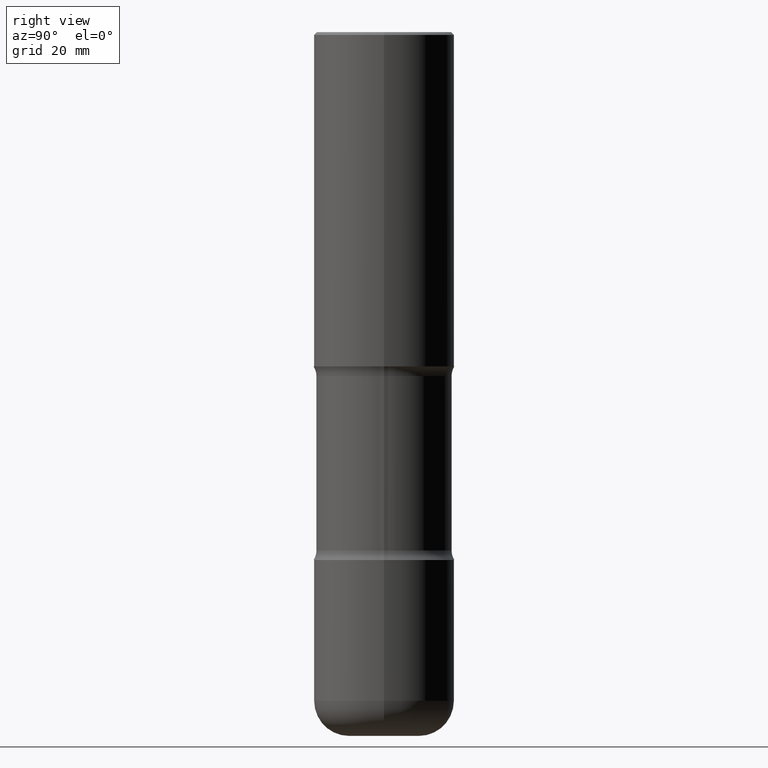
[diagram: clean part render]
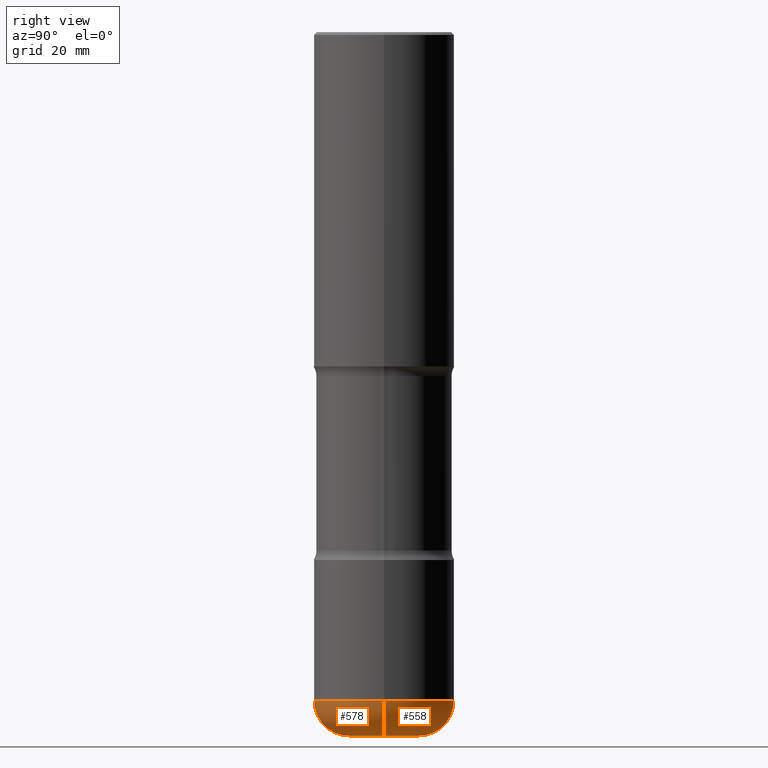
[diagram: same view with one multi-face feature highlighted, each face labeled with its STEP entity id]
A machine part, right view. The highlighted faces form ONE feature: a constant-radius fillet chain: 2 tangent blend faces with common blend radius 6.35 mm. The faces share edges in the B-rep.
Their STEP definitions:
[1] entity #558 (Torus):
#5 = EDGE_CURVE ( 'NONE', #775, #15, #606, .T. ) ;
#15 = VERTEX_POINT ( 'NONE', #179 ) ;
#39 = CARTESIAN_POINT ( 'NONE',  ( 0.2500000000000000555, -1.920314736363729656E-14, -5.000000000000000000 ) ) ;
#61 = DIRECTION ( 'NONE',  ( -1.000000000000000000, 7.105427357600998703E-15, 0.000000000000000000 ) ) ;
#98 = CARTESIAN_POINT ( 'NONE',  ( 1.161597682937940108E-28, -1.658453635950494339E-14, -4.750000000000000000 ) ) ;
#124 = DIRECTION ( 'NONE',  ( -6.982962677686266711E-15, -1.000000000000000000, 3.491481338843145583E-15 ) ) ;
#128 = CARTESIAN_POINT ( 'NONE',  ( -0.5000000000000000000, -1.303182268070444246E-14, -4.750000000000000000 ) ) ;
#166 = DIRECTION ( 'NONE',  ( -2.445468806185136597E-29, 3.491481338843145583E-15, 1.000000000000000000 ) ) ;
#179 = CARTESIAN_POINT ( 'NONE',  ( 0.5000000000000000000, -2.007601769834807675E-14, -4.750000000000000000 ) ) ;
#195 = FACE_OUTER_BOUND ( 'NONE', #376, .T. ) ;
#230 = CIRCLE ( 'NONE', #331, 0.2500000000000000555 ) ;
#323 = CARTESIAN_POINT ( 'NONE',  ( -0.2500000000000000000, -1.480817952010469293E-14, -4.750000000000000000 ) ) ;
#331 = AXIS2_PLACEMENT_3D ( 'NONE', #441, #556, #560 ) ;
#343 = AXIS2_PLACEMENT_3D ( 'NONE', #98, #166, #652 ) ;
#345 = CARTESIAN_POINT ( 'NONE',  ( -0.2500000000000000555, -1.435643626775996094E-14, -5.000000000000000000 ) ) ;
#363 = DIRECTION ( 'NONE',  ( 1.000000000000000000, -6.982962677686267499E-15, 4.883557194083114022E-29 ) ) ;
#376 = EDGE_LOOP ( 'NONE', ( #785, #602, #478, #475 ) ) ;
#441 = CARTESIAN_POINT ( 'NONE',  ( 1.222734403092568523E-28, -1.745740669421572989E-14, -5.000000000000000000 ) ) ;
#452 = VERTEX_POINT ( 'NONE', #345 ) ;
#458 = EDGE_CURVE ( 'NONE', #15, #646, #752, .T. ) ;
#462 = AXIS2_PLACEMENT_3D ( 'NONE', #671, #727, #363 ) ;
#475 = ORIENTED_EDGE ( 'NONE', *, *, #5, .F. ) ;
#478 = ORIENTED_EDGE ( 'NONE', *, *, #458, .F. ) ;
#556 = DIRECTION ( 'NONE',  ( -2.445468806185136597E-29, 3.491481338843145583E-15, 1.000000000000000000 ) ) ;
#558 = ADVANCED_FACE ( 'NONE', ( #195 ), #658, .T. ) ;
#560 = DIRECTION ( 'NONE',  ( 1.000000000000000000, -6.982962677686269077E-15, 0.000000000000000000 ) ) ;
#577 = AXIS2_PLACEMENT_3D ( 'NONE', #323, #755, #61 ) ;
#594 = EDGE_CURVE ( 'NONE', #775, #452, #230, .T. ) ;
#602 = ORIENTED_EDGE ( 'NONE', *, *, #613, .T. ) ;
#605 = DIRECTION ( 'NONE',  ( 1.000000000000000000, -6.982962677686265133E-15, 0.000000000000000000 ) ) ;
#606 = CIRCLE ( 'NONE', #766, 0.2499999999999999167 ) ;
#612 = CARTESIAN_POINT ( 'NONE',  ( 0.2500000000000000000, -1.833027702892651007E-14, -4.750000000000000000 ) ) ;
#613 = EDGE_CURVE ( 'NONE', #452, #646, #739, .T. ) ;
#646 = VERTEX_POINT ( 'NONE', #128 ) ;
#652 = DIRECTION ( 'NONE',  ( 1.000000000000000000, -6.982962677686265133E-15, 0.000000000000000000 ) ) ;
#658 = TOROIDAL_SURFACE ( 'NONE', #462, 0.2500000000000000000, 0.2499999999999999167 ) ;
#671 = CARTESIAN_POINT ( 'NONE',  ( 1.161597682937940108E-28, -1.658453635950494339E-14, -4.750000000000000000 ) ) ;
#727 = DIRECTION ( 'NONE',  ( -2.445468806185136597E-29, 3.491481338843145583E-15, 1.000000000000000000 ) ) ;
#739 = CIRCLE ( 'NONE', #577, 0.2499999999999999167 ) ;
#752 = CIRCLE ( 'NONE', #343, 0.5000000000000001110 ) ;
#755 = DIRECTION ( 'NONE',  ( 7.105427357601001859E-15, 1.000000000000000000, -3.491481338843145583E-15 ) ) ;
#766 = AXIS2_PLACEMENT_3D ( 'NONE', #612, #124, #605 ) ;
#775 = VERTEX_POINT ( 'NONE', #39 ) ;
#785 = ORIENTED_EDGE ( 'NONE', *, *, #594, .T. ) ;
[2] entity #578 (Torus):
#5 = EDGE_CURVE ( 'NONE', #775, #15, #606, .T. ) ;
#15 = VERTEX_POINT ( 'NONE', #179 ) ;
#39 = CARTESIAN_POINT ( 'NONE',  ( 0.2500000000000000555, -1.920314736363729656E-14, -5.000000000000000000 ) ) ;
#61 = DIRECTION ( 'NONE',  ( -1.000000000000000000, 7.105427357600998703E-15, 0.000000000000000000 ) ) ;
#112 = DIRECTION ( 'NONE',  ( 1.000000000000000000, -6.982962677686267499E-15, 4.883557194083114022E-29 ) ) ;
#124 = DIRECTION ( 'NONE',  ( -6.982962677686266711E-15, -1.000000000000000000, 3.491481338843145583E-15 ) ) ;
#128 = CARTESIAN_POINT ( 'NONE',  ( -0.5000000000000000000, -1.303182268070444246E-14, -4.750000000000000000 ) ) ;
#179 = CARTESIAN_POINT ( 'NONE',  ( 0.5000000000000000000, -2.007601769834807675E-14, -4.750000000000000000 ) ) ;
#220 = ORIENTED_EDGE ( 'NONE', *, *, #406, .F. ) ;
#221 = DIRECTION ( 'NONE',  ( 1.000000000000000000, -6.982962677686269077E-15, 0.000000000000000000 ) ) ;
#232 = DIRECTION ( 'NONE',  ( 1.000000000000000000, -6.982962677686265133E-15, 0.000000000000000000 ) ) ;
#260 = ORIENTED_EDGE ( 'NONE', *, *, #393, .T. ) ;
#278 = DIRECTION ( 'NONE',  ( -2.445468806185136597E-29, 3.491481338843145583E-15, 1.000000000000000000 ) ) ;
#323 = CARTESIAN_POINT ( 'NONE',  ( -0.2500000000000000000, -1.480817952010469293E-14, -4.750000000000000000 ) ) ;
#345 = CARTESIAN_POINT ( 'NONE',  ( -0.2500000000000000555, -1.435643626775996094E-14, -5.000000000000000000 ) ) ;
#369 = CARTESIAN_POINT ( 'NONE',  ( 1.161597682937940108E-28, -1.658453635950494339E-14, -4.750000000000000000 ) ) ;
#391 = AXIS2_PLACEMENT_3D ( 'NONE', #369, #553, #112 ) ;
#393 = EDGE_CURVE ( 'NONE', #452, #775, #780, .T. ) ;
#403 = AXIS2_PLACEMENT_3D ( 'NONE', #465, #470, #232 ) ;
#406 = EDGE_CURVE ( 'NONE', #646, #15, #669, .T. ) ;
#426 = FACE_OUTER_BOUND ( 'NONE', #429, .T. ) ;
#429 = EDGE_LOOP ( 'NONE', ( #467, #260, #704, #220 ) ) ;
#452 = VERTEX_POINT ( 'NONE', #345 ) ;
#465 = CARTESIAN_POINT ( 'NONE',  ( 1.161597682937940108E-28, -1.658453635950494339E-14, -4.750000000000000000 ) ) ;
#467 = ORIENTED_EDGE ( 'NONE', *, *, #613, .F. ) ;
#470 = DIRECTION ( 'NONE',  ( -2.445468806185136597E-29, 3.491481338843145583E-15, 1.000000000000000000 ) ) ;
#523 = CARTESIAN_POINT ( 'NONE',  ( 1.222734403092568523E-28, -1.745740669421572989E-14, -5.000000000000000000 ) ) ;
#553 = DIRECTION ( 'NONE',  ( -2.445468806185136597E-29, 3.491481338843145583E-15, 1.000000000000000000 ) ) ;
#577 = AXIS2_PLACEMENT_3D ( 'NONE', #323, #755, #61 ) ;
#578 = ADVANCED_FACE ( 'NONE', ( #426 ), #767, .T. ) ;
#605 = DIRECTION ( 'NONE',  ( 1.000000000000000000, -6.982962677686265133E-15, 0.000000000000000000 ) ) ;
#606 = CIRCLE ( 'NONE', #766, 0.2499999999999999167 ) ;
#612 = CARTESIAN_POINT ( 'NONE',  ( 0.2500000000000000000, -1.833027702892651007E-14, -4.750000000000000000 ) ) ;
#613 = EDGE_CURVE ( 'NONE', #452, #646, #739, .T. ) ;
#646 = VERTEX_POINT ( 'NONE', #128 ) ;
#669 = CIRCLE ( 'NONE', #403, 0.5000000000000001110 ) ;
#693 = AXIS2_PLACEMENT_3D ( 'NONE', #523, #278, #221 ) ;
#704 = ORIENTED_EDGE ( 'NONE', *, *, #5, .T. ) ;
#739 = CIRCLE ( 'NONE', #577, 0.2499999999999999167 ) ;
#755 = DIRECTION ( 'NONE',  ( 7.105427357601001859E-15, 1.000000000000000000, -3.491481338843145583E-15 ) ) ;
#766 = AXIS2_PLACEMENT_3D ( 'NONE', #612, #124, #605 ) ;
#767 = TOROIDAL_SURFACE ( 'NONE', #391, 0.2500000000000000000, 0.2499999999999999167 ) ;
#775 = VERTEX_POINT ( 'NONE', #39 ) ;
#780 = CIRCLE ( 'NONE', #693, 0.2500000000000000555 ) ;